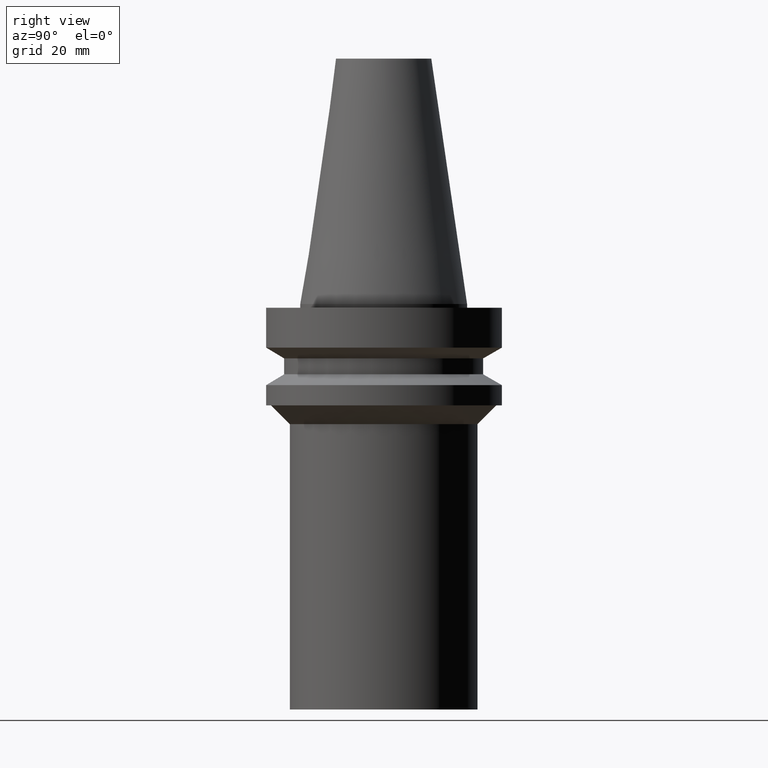
[diagram: clean part render]
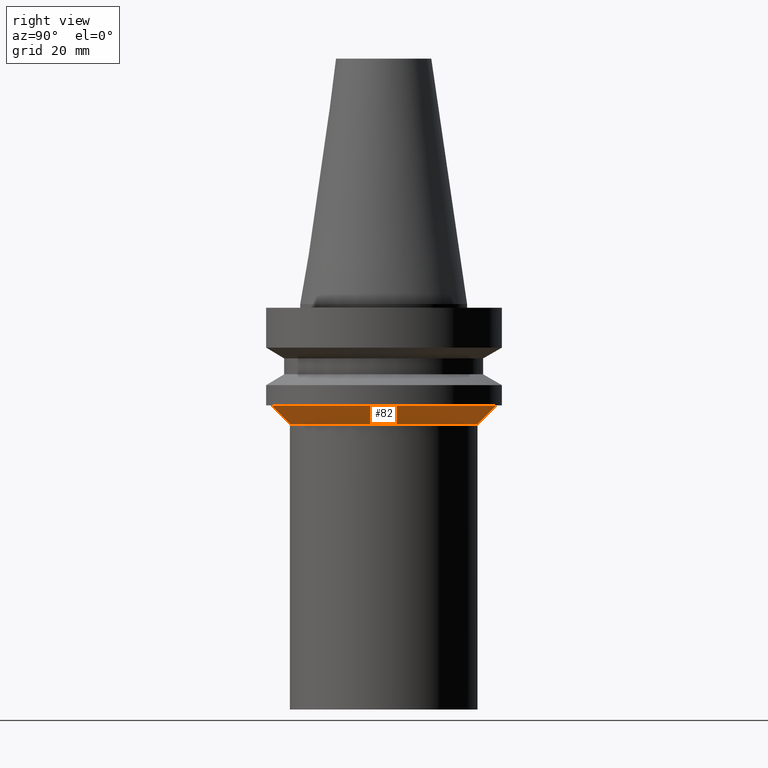
[diagram: same view with one face highlighted and labeled with its STEP entity id]
A machine part, right view. The second image highlights one B-rep face of the part: STEP entity #82.
In plain terms, the highlighted conical surface has half-angle 45 deg.
Its self-contained STEP definition (entity closure, byte-faithful):
#82=ADVANCED_FACE('',(#110,#111),#112,.T.);
#110=FACE_BOUND('',#147,.T.);
#111=FACE_BOUND('',#148,.T.);
#112=CONICAL_SURFACE('',#149,27.5,0.785398163397448);
#147=EDGE_LOOP('',(#198));
#148=EDGE_LOOP('',(#199));
#149=AXIS2_PLACEMENT_3D('',#200,#201,#202);
#198=ORIENTED_EDGE('',*,*,#234,.F.);
#199=ORIENTED_EDGE('',*,*,#233,.T.);
#200=CARTESIAN_POINT('',(1.80635402874235E-015,3.61270805748469E-015,-29.5));
#201=DIRECTION('',(-6.12323399573677E-017,-1.22464679914735E-016,1.0));
#202=DIRECTION('',(-1.23259516440783E-032,1.0,1.22464679914735E-016));
#233=EDGE_CURVE('',#252,#252,#253,.T.);
#234=EDGE_CURVE('',#254,#254,#255,.T.);
#252=VERTEX_POINT('',#276);
#253=CIRCLE('',#277,30.0);
#254=VERTEX_POINT('',#278);
#255=CIRCLE('',#279,25.0);
#276=CARTESIAN_POINT('',(1.65327317884893E-015,30.0,-27.0));
#277=AXIS2_PLACEMENT_3D('',#307,#308,#309);
#278=CARTESIAN_POINT('',(1.95943487863576E-015,25.0,-32.0));
#279=AXIS2_PLACEMENT_3D('',#310,#311,#312);
#307=CARTESIAN_POINT('',(1.65327317884893E-015,3.30654635769785E-015,-27.0));
#308=DIRECTION('',(6.12323399573677E-017,1.22464679914735E-016,-1.0));
#309=DIRECTION('',(-1.23259516440783E-032,1.0,1.22464679914735E-016));
#310=CARTESIAN_POINT('',(1.95943487863577E-015,3.91886975727153E-015,-32.0));
#311=DIRECTION('',(6.12323399573677E-017,1.22464679914735E-016,-1.0));
#312=DIRECTION('',(-1.23259516440783E-032,1.0,1.22464679914735E-016));